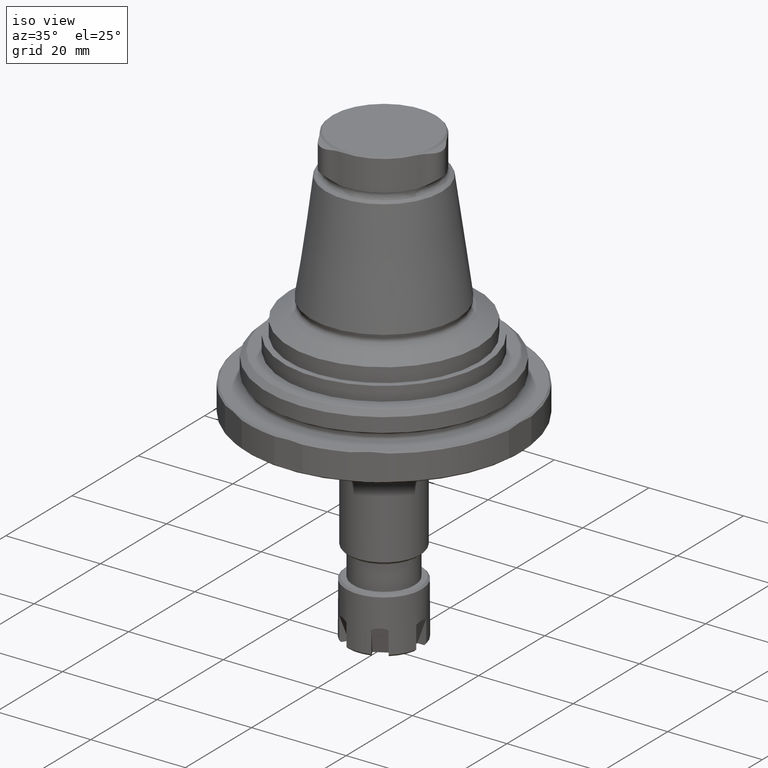
[diagram: clean part render]
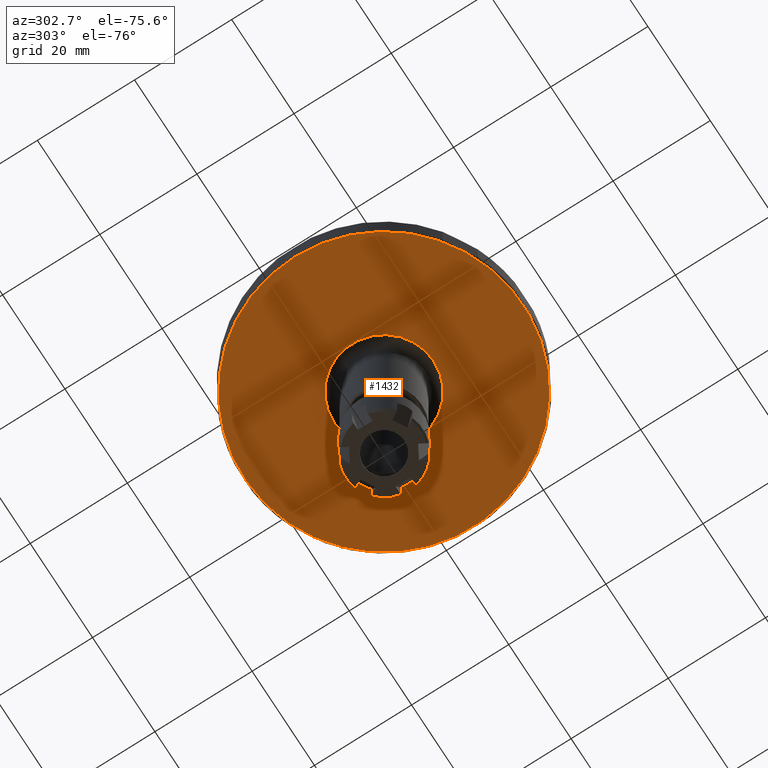
[diagram: tour spotlight — one face highlighted and labeled with its STEP entity id]
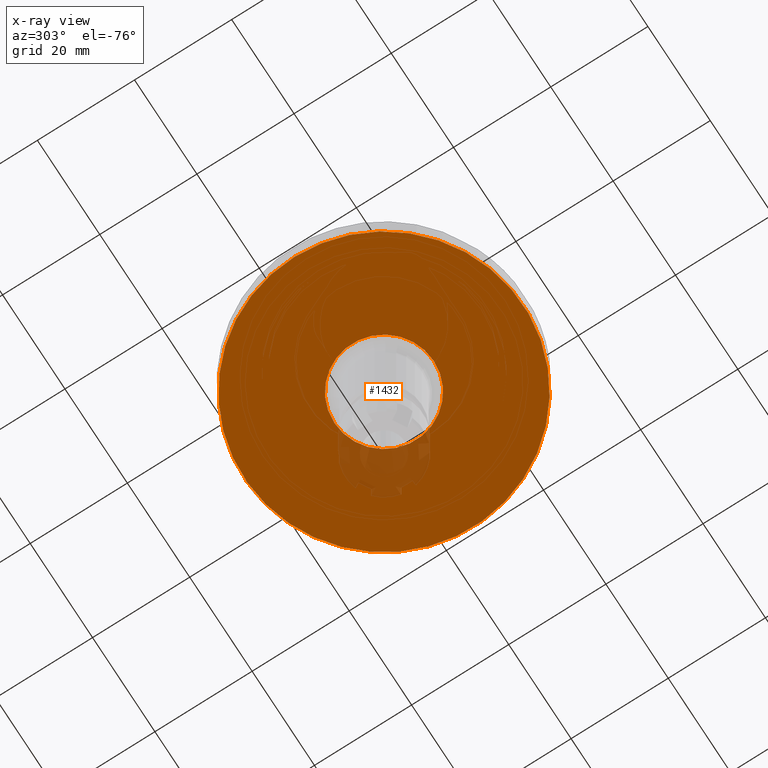
[diagram: x-ray of the same camera — body ghosted, this tour face saturated]
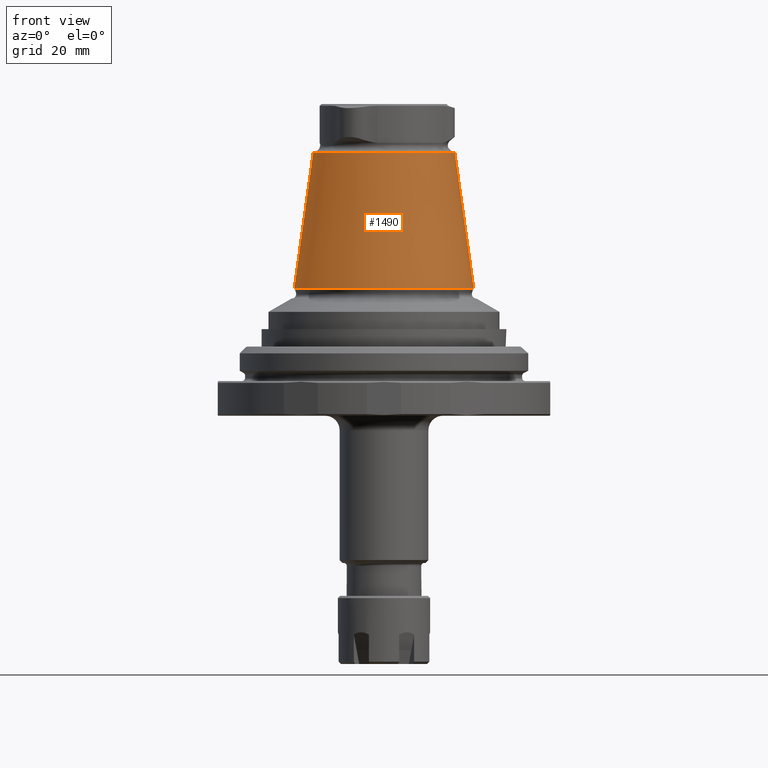
[diagram: tour spotlight — one face highlighted and labeled with its STEP entity id]
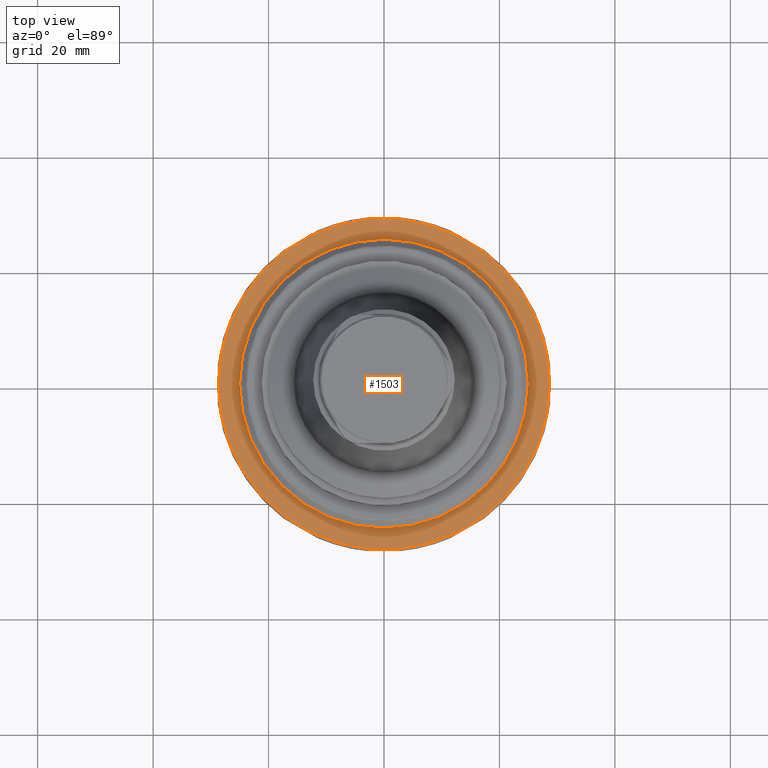
[diagram: tour spotlight — one face highlighted and labeled with its STEP entity id]
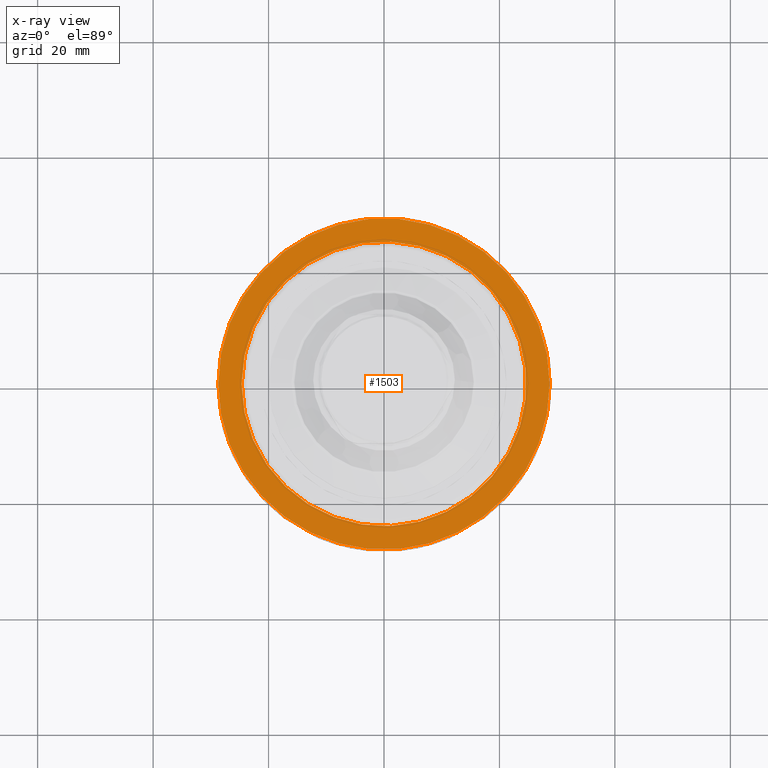
[diagram: x-ray of the same camera — body ghosted, this tour face saturated]
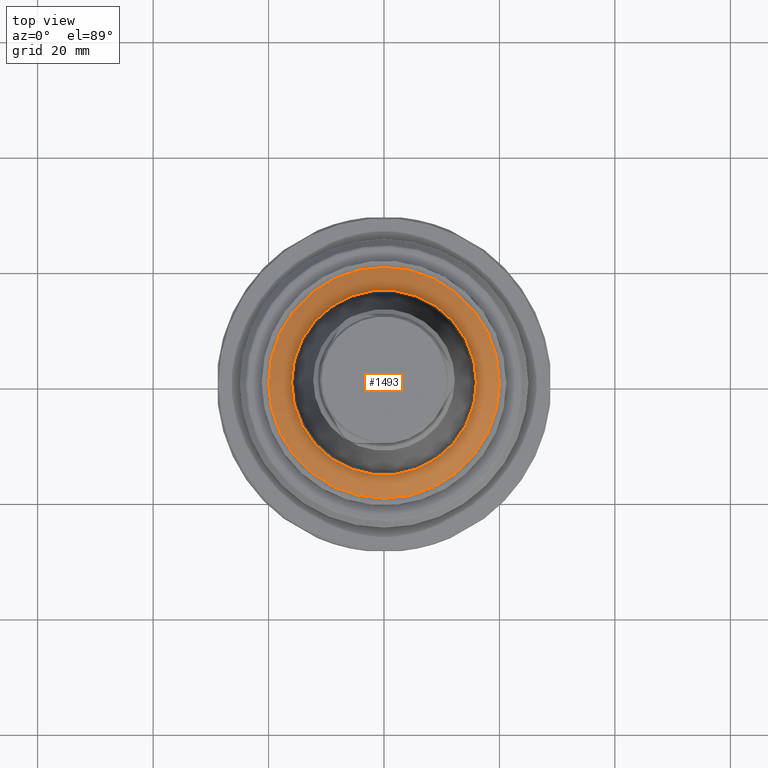
[diagram: tour spotlight — one face highlighted and labeled with its STEP entity id]
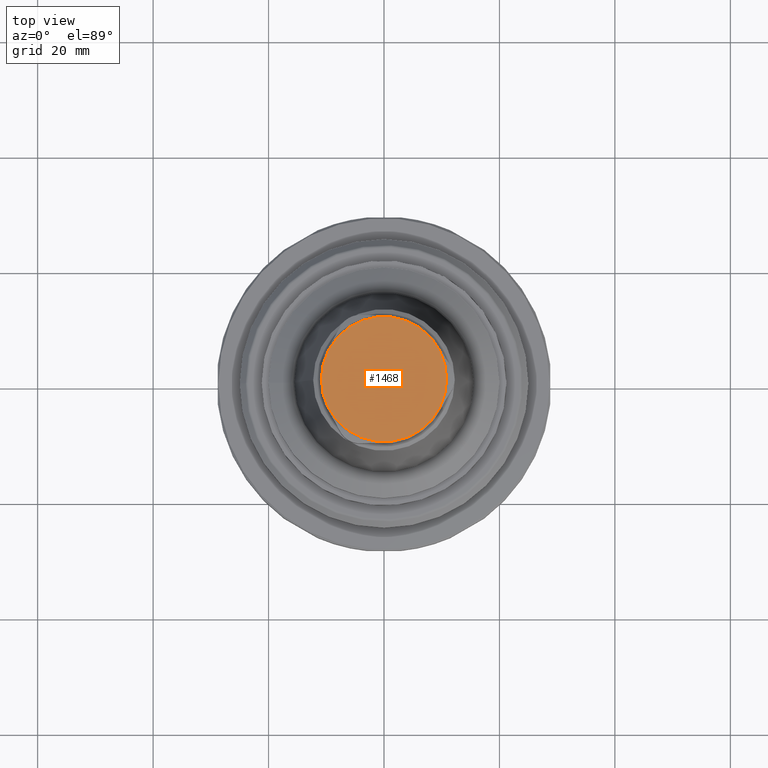
[diagram: tour spotlight — one face highlighted and labeled with its STEP entity id]
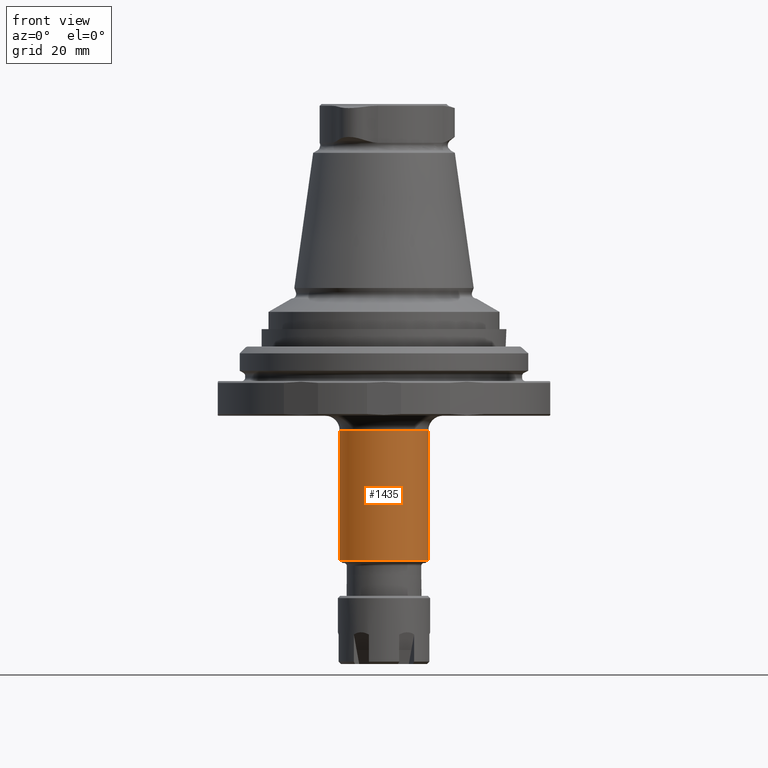
[diagram: tour spotlight — one face highlighted and labeled with its STEP entity id]
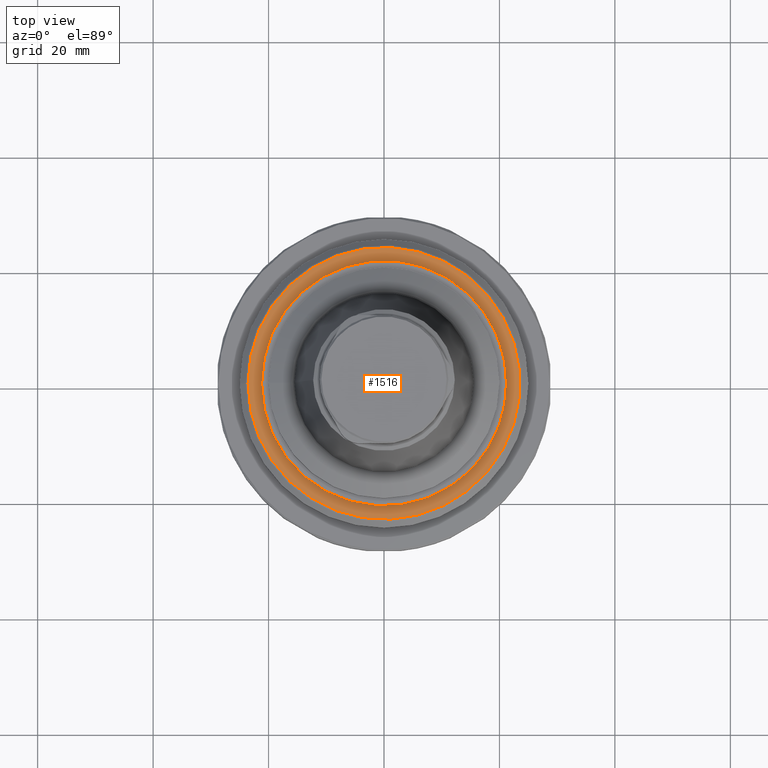
[diagram: tour spotlight — one face highlighted and labeled with its STEP entity id]
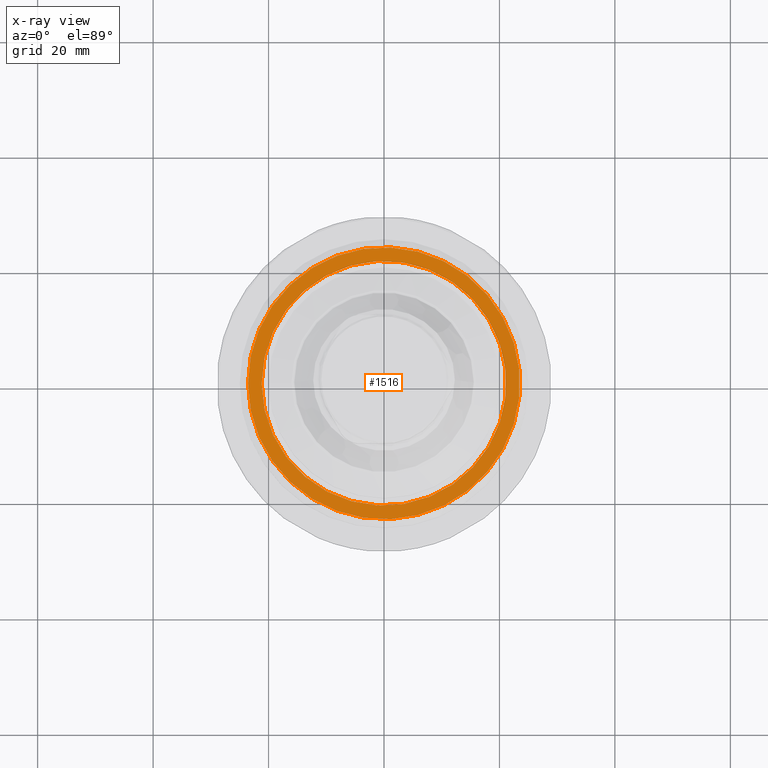
[diagram: x-ray of the same camera — body ghosted, this tour face saturated]
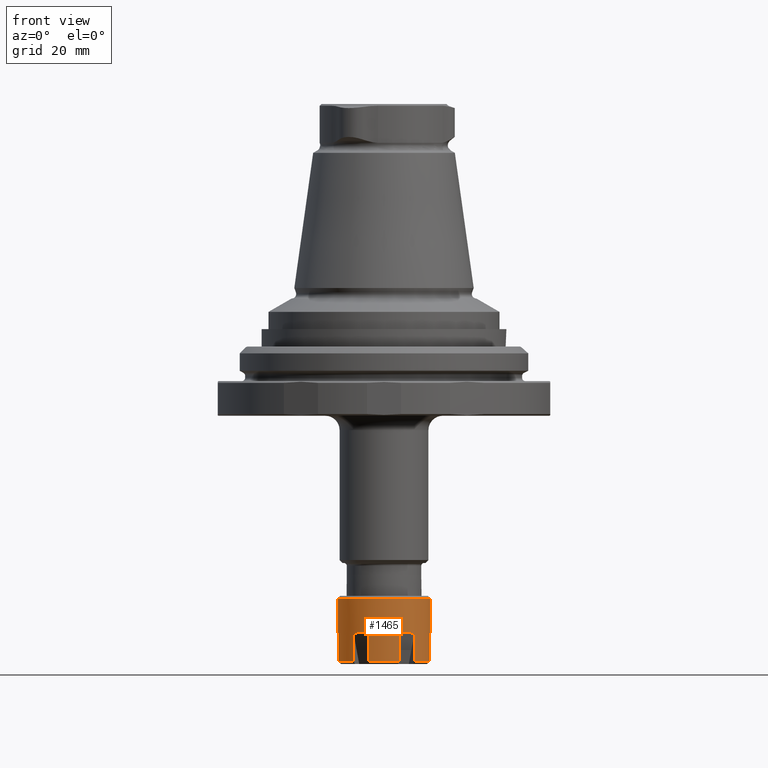
[diagram: tour spotlight — one face highlighted and labeled with its STEP entity id]
A machine part: a face-by-face anatomy tour. The part has 99 B-rep faces; the first image is the clean iso view, then the 8 largest visible faces are spotlighted one at a time (largest first), each with its STEP entity span.

Face 1 — auxiliary view, entity #1432. An x-ray twin of the same camera follows (body ghosted, this face saturated) — the face is partly hidden behind the body. In plain terms, the highlighted planar face has unit normal (0, -0, -1).
Definition (entity closure, byte-faithful):
#281=ORIENTED_EDGE('',*,*,#691,.T.);
#282=ORIENTED_EDGE('',*,*,#692,.T.);
#691=EDGE_CURVE('',#896,#896,#1043,.F.);
#692=EDGE_CURVE('',#897,#897,#1044,.T.);
#896=VERTEX_POINT('',#2165);
#897=VERTEX_POINT('',#2167);
#1043=CIRCLE('',#1545,10.25);
#1044=CIRCLE('',#1546,28.7);
#1120=EDGE_LOOP('',(#281));
#1121=EDGE_LOOP('',(#282));
#1258=FACE_BOUND('',#1120,.T.);
#1259=FACE_BOUND('',#1121,.T.);
#1396=PLANE('',#1544);
#1432=ADVANCED_FACE('',(#1258,#1259),#1396,.T.);
#1544=AXIS2_PLACEMENT_3D('',#2163,#1728,#1729);
#1545=AXIS2_PLACEMENT_3D('',#2164,#1730,#1731);
#1546=AXIS2_PLACEMENT_3D('',#2166,#1732,#1733);
#1728=DIRECTION('',(2.49783760049311E-16,-7.79579225983867E-33,-1.));
#1729=DIRECTION('',(-1.,6.12303176911188E-17,-2.49783760049311E-16));
#1730=DIRECTION('',(1.22464605849178E-16,1.51929083932157E-64,-1.));
#1731=DIRECTION('',(6.16297582203915E-33,1.,7.54746404904039E-49));
#1732=DIRECTION('',(1.22464605849178E-16,1.04225259501902E-17,-1.));
#1733=DIRECTION('',(-1.,-1.84889274661175E-32,-1.22464605849178E-16));
#2163=CARTESIAN_POINT('',(-21.5,1.31645183035906E-15,-7.00000000000001));
#2164=CARTESIAN_POINT('',(5.38954355443911E-16,1.94894806495966E-32,-7.));
#2165=CARTESIAN_POINT('',(5.38954355443911E-16,10.25,-7.));
#2166=CARTESIAN_POINT('',(5.8868771208351E-15,1.56337889252853E-16,-7.00000000000001));
#2167=CARTESIAN_POINT('',(-28.7,1.56337889252853E-16,-7.00000000000001));

Face 2 — front view, entity #1490. In plain terms, the highlighted conical surface has half-angle 7.95 deg.
Definition (entity closure, byte-faithful):
#272=CONICAL_SURFACE('',#1647,15.5400379337869,0.13875367553355);
#548=ORIENTED_EDGE('',*,*,#825,.T.);
#549=ORIENTED_EDGE('',*,*,#826,.F.);
#825=EDGE_CURVE('',#988,#988,#1081,.T.);
#826=EDGE_CURVE('',#989,#989,#1082,.T.);
#988=VERTEX_POINT('',#2562);
#989=VERTEX_POINT('',#2565);
#1081=CIRCLE('',#1646,12.2706905250473);
#1082=CIRCLE('',#1648,15.5400379337869);
#1193=EDGE_LOOP('',(#548));
#1194=EDGE_LOOP('',(#549));
#1331=FACE_BOUND('',#1193,.T.);
#1332=FACE_BOUND('',#1194,.T.);
#1490=ADVANCED_FACE('',(#1331,#1332),#272,.T.);
#1646=AXIS2_PLACEMENT_3D('',#2561,#1986,#1987);
#1647=AXIS2_PLACEMENT_3D('',#2563,#1988,#1989);
#1648=AXIS2_PLACEMENT_3D('',#2564,#1990,#1991);
#1986=DIRECTION('',(2.49783760049311E-16,-7.79579225983867E-33,-1.));
#1987=DIRECTION('',(-1.,6.12303176911188E-17,-2.49783760049311E-16));
#1988=DIRECTION('',(2.49783760049311E-16,-7.79579225983867E-33,-1.));
#1989=DIRECTION('',(-1.,6.12303176911188E-17,-2.49783760049311E-16));
#1990=DIRECTION('',(2.49783760049311E-16,-7.79579225983867E-33,-1.));
#1991=DIRECTION('',(-1.,6.12303176911188E-17,-2.49783760049311E-16));
#2561=CARTESIAN_POINT('',(-3.58073605264896E-15,-6.98118715170611E-32,38.549));
#2562=CARTESIAN_POINT('',(-12.2706905250473,7.51338279138048E-16,38.549));
#2563=CARTESIAN_POINT('',(2.26691015852038E-15,-2.52317872156612E-31,15.1381657247255));
#2564=CARTESIAN_POINT('',(2.26691015852038E-15,-2.52317872156612E-31,15.1381657247255));
#2565=CARTESIAN_POINT('',(-15.5400379337869,9.51521459617812E-16,15.1381657247255));

Face 3 — top view, entity #1503. An x-ray twin of the same camera follows (body ghosted, this face saturated) — the face is partly hidden behind the body. In plain terms, the highlighted planar face has unit normal (0, 0, -1).
Definition (entity closure, byte-faithful):
#612=ORIENTED_EDGE('',*,*,#872,.T.);
#613=ORIENTED_EDGE('',*,*,#852,.F.);
#852=EDGE_CURVE('',#1014,#1014,#1098,.T.);
#872=EDGE_CURVE('',#1029,#1029,#1106,.T.);
#1014=VERTEX_POINT('',#2648);
#1029=VERTEX_POINT('',#2712);
#1098=CIRCLE('',#1672,28.7);
#1106=CIRCLE('',#1685,24.65);
#1215=EDGE_LOOP('',(#612));
#1216=EDGE_LOOP('',(#613));
#1353=FACE_BOUND('',#1215,.T.);
#1354=FACE_BOUND('',#1216,.T.);
#1421=PLANE('',#1684);
#1503=ADVANCED_FACE('',(#1353,#1354),#1421,.F.);
#1672=AXIS2_PLACEMENT_3D('',#2647,#2040,#2041);
#1684=AXIS2_PLACEMENT_3D('',#2710,#2068,#2069);
#1685=AXIS2_PLACEMENT_3D('',#2711,#2070,#2071);
#2040=DIRECTION('',(1.22464605849178E-16,1.04225259501902E-17,-1.));
#2041=DIRECTION('',(-1.,-1.84889274661175E-32,-1.22464605849178E-16));
#2068=DIRECTION('',(1.22464605849178E-16,1.04225259501902E-17,-1.));
#2069=DIRECTION('',(-1.,-1.84889274661175E-32,-1.22464605849178E-16));
#2070=DIRECTION('',(1.22464605849178E-16,1.04225259501902E-17,-1.));
#2071=DIRECTION('',(-1.,-1.84889274661175E-32,-1.22464605849178E-16));
#2647=CARTESIAN_POINT('',(5.15208948574003E-15,9.38027335517118E-17,-1.00000000000001));
#2648=CARTESIAN_POINT('',(-28.7,9.38027335517112E-17,-1.00000000000001));
#2710=CARTESIAN_POINT('',(-24.65,9.38027335517113E-17,-1.00000000000001));
#2711=CARTESIAN_POINT('',(5.15208948574003E-15,9.38027335517118E-17,-1.00000000000001));
#2712=CARTESIAN_POINT('',(-24.65,9.38027335517113E-17,-1.00000000000001));

Face 4 — top view, entity #1493. In plain terms, the highlighted conical surface has half-angle 60 deg.
Definition (entity closure, byte-faithful):
#274=CONICAL_SURFACE('',#1653,20.,1.0471975511966);
#554=ORIENTED_EDGE('',*,*,#828,.T.);
#555=ORIENTED_EDGE('',*,*,#829,.F.);
#828=EDGE_CURVE('',#991,#991,#1084,.T.);
#829=EDGE_CURVE('',#992,#992,#1085,.T.);
#991=VERTEX_POINT('',#2571);
#992=VERTEX_POINT('',#2574);
#1084=CIRCLE('',#1652,16.0162831425916);
#1085=CIRCLE('',#1654,20.);
#1199=EDGE_LOOP('',(#554));
#1200=EDGE_LOOP('',(#555));
#1337=FACE_BOUND('',#1199,.T.);
#1338=FACE_BOUND('',#1200,.T.);
#1493=ADVANCED_FACE('',(#1337,#1338),#274,.T.);
#1652=AXIS2_PLACEMENT_3D('',#2570,#1998,#1999);
#1653=AXIS2_PLACEMENT_3D('',#2572,#2000,#2001);
#1654=AXIS2_PLACEMENT_3D('',#2573,#2002,#2003);
#1998=DIRECTION('',(2.49783760049311E-16,-7.79579225983867E-33,-1.));
#1999=DIRECTION('',(-1.,6.12303176911188E-17,-2.49783760049311E-16));
#2000=DIRECTION('',(2.49783760049311E-16,-7.79579225983867E-33,-1.));
#2001=DIRECTION('',(-1.,6.12303176911188E-17,-2.49783760049311E-16));
#2002=DIRECTION('',(2.49783760049311E-16,-7.79579225983867E-33,-1.));
#2003=DIRECTION('',(-1.,6.12303176911188E-17,-2.49783760049311E-16));
#2570=CARTESIAN_POINT('',(2.7250372886906E-15,-2.66616095286482E-31,13.3040707856479));
#2571=CARTESIAN_POINT('',(-16.0162831425916,9.80682105051795E-16,13.3040707856479));
#2572=CARTESIAN_POINT('',(3.29953993680401E-15,-2.84546417484111E-31,11.0040707856479));
#2573=CARTESIAN_POINT('',(3.29953993680401E-15,-2.84546417484111E-31,11.0040707856479));
#2574=CARTESIAN_POINT('',(-20.,1.22460635382238E-15,11.0040707856479));

Face 5 — top view, entity #1468. In plain terms, the highlighted planar face has unit normal (-0, 0, 1).
Definition (entity closure, byte-faithful):
#447=ORIENTED_EDGE('',*,*,#775,.F.);
#775=EDGE_CURVE('',#956,#956,#1067,.T.);
#956=VERTEX_POINT('',#2381);
#1067=CIRCLE('',#1611,10.85);
#1168=EDGE_LOOP('',(#447));
#1306=FACE_BOUND('',#1168,.T.);
#1418=PLANE('',#1610);
#1468=ADVANCED_FACE('',(#1306),#1418,.T.);
#1610=AXIS2_PLACEMENT_3D('',#2379,#1902,#1903);
#1611=AXIS2_PLACEMENT_3D('',#2380,#1904,#1905);
#1902=DIRECTION('',(-2.49783760049311E-16,7.79579225983867E-33,1.));
#1903=DIRECTION('',(1.,-6.12303176911188E-17,2.49783760049311E-16));
#1904=DIRECTION('',(2.49783760049311E-16,-7.79579225983867E-33,-1.));
#1905=DIRECTION('',(-1.,6.12303176911188E-17,-2.49783760049311E-16));
#2379=CARTESIAN_POINT('',(-10.85,6.6434894694864E-16,47.));
#2380=CARTESIAN_POINT('',(-5.69165860882569E-15,-3.92963112916449E-33,47.));
#2381=CARTESIAN_POINT('',(-10.85,6.6434894694864E-16,47.));

Face 6 — front view, entity #1435. In plain terms, the highlighted cylindrical surface (bore or boss wall) has radius 7.75 mm, axis along (0, 0, -1).
Definition (entity closure, byte-faithful):
#225=CYLINDRICAL_SURFACE('',#1552,7.75);
#287=ORIENTED_EDGE('',*,*,#695,.T.);
#288=ORIENTED_EDGE('',*,*,#696,.T.);
#695=EDGE_CURVE('',#900,#900,#1047,.F.);
#696=EDGE_CURVE('',#901,#901,#1048,.T.);
#900=VERTEX_POINT('',#2175);
#901=VERTEX_POINT('',#2178);
#1047=CIRCLE('',#1551,7.75);
#1048=CIRCLE('',#1553,7.75);
#1126=EDGE_LOOP('',(#287));
#1127=EDGE_LOOP('',(#288));
#1264=FACE_BOUND('',#1126,.T.);
#1265=FACE_BOUND('',#1127,.T.);
#1435=ADVANCED_FACE('',(#1264,#1265),#225,.T.);
#1551=AXIS2_PLACEMENT_3D('',#2174,#1742,#1743);
#1552=AXIS2_PLACEMENT_3D('',#2176,#1744,#1745);
#1553=AXIS2_PLACEMENT_3D('',#2177,#1746,#1747);
#1742=DIRECTION('',(1.22464605849178E-16,1.51929083932157E-64,-1.));
#1743=DIRECTION('',(6.16297582203915E-33,1.,7.54746404904039E-49));
#1744=DIRECTION('',(1.22464605849178E-16,1.51929083932157E-64,-1.));
#1745=DIRECTION('',(6.16297582203915E-33,1.,7.54746404904039E-49));
#1746=DIRECTION('',(1.22464605849178E-16,1.51929083932157E-64,-1.));
#1747=DIRECTION('',(6.16297582203915E-33,1.,7.54746404904039E-49));
#2174=CARTESIAN_POINT('',(3.91886738717369E-15,6.68549816374926E-63,-32.));
#2175=CARTESIAN_POINT('',(3.91886738717369E-15,7.75,-32.));
#2176=CARTESIAN_POINT('',(5.87780255360068E-15,9.11574503592941E-63,-47.9959292143521));
#2177=CARTESIAN_POINT('',(1.16341375556719E-15,3.26709377527574E-63,-9.5));
#2178=CARTESIAN_POINT('',(1.16341375556719E-15,7.75,-9.5));

Face 7 — top view, entity #1516. An x-ray twin of the same camera follows (body ghosted, this face saturated) — the face is partly hidden behind the body. In plain terms, the highlighted planar face has unit normal (0, 0, -1).
Definition (entity closure, byte-faithful):
#662=ORIENTED_EDGE('',*,*,#832,.F.);
#663=ORIENTED_EDGE('',*,*,#883,.F.);
#832=EDGE_CURVE('',#995,#995,#1088,.T.);
#883=EDGE_CURVE('',#1030,#1030,#1107,.T.);
#995=VERTEX_POINT('',#2583);
#1030=VERTEX_POINT('',#2737);
#1088=CIRCLE('',#1660,21.2);
#1107=CIRCLE('',#1699,23.5524710292422);
#1229=EDGE_LOOP('',(#662));
#1230=EDGE_LOOP('',(#663));
#1367=FACE_BOUND('',#1229,.T.);
#1368=FACE_BOUND('',#1230,.T.);
#1429=PLANE('',#1698);
#1516=ADVANCED_FACE('',(#1367,#1368),#1429,.F.);
#1660=AXIS2_PLACEMENT_3D('',#2582,#2014,#2015);
#1698=AXIS2_PLACEMENT_3D('',#2735,#2106,#2107);
#1699=AXIS2_PLACEMENT_3D('',#2736,#2108,#2109);
#2014=DIRECTION('',(-1.06830816923893E-16,-6.38359491786664E-17,1.));
#2015=DIRECTION('',(-1.,6.12303176911188E-17,-1.0683081361517E-16));
#2106=DIRECTION('',(1.22464605849178E-16,1.04225259501902E-17,-1.));
#2107=DIRECTION('',(-1.,-1.84889274661175E-32,-1.22464605849178E-16));
#2108=DIRECTION('',(1.22464605849178E-16,1.04225259501902E-17,-1.));
#2109=DIRECTION('',(-1.,-1.84889274661175E-32,-1.22464605849178E-16));
#2582=CARTESIAN_POINT('',(4.87073578480807E-15,-1.30281574377412E-18,4.99999999999999));
#2583=CARTESIAN_POINT('',(-21.2,1.29677991930795E-15,4.99999999999999));
#2735=CARTESIAN_POINT('',(4.41730185064496E-15,3.12675778505702E-17,5.));
#2736=CARTESIAN_POINT('',(4.41730185064496E-15,3.12675778505702E-17,4.99999999999999));
#2737=CARTESIAN_POINT('',(-23.5524710292422,3.12675778505698E-17,4.99999999999999));

Face 8 — front view, entity #1465. In plain terms, the highlighted cylindrical surface (bore or boss wall) has radius 8 mm, axis along (0, 0, -1).
Definition (entity closure, byte-faithful):
#20=ELLIPSE('',#1571,23.3904352013047,8.);
#21=ELLIPSE('',#1577,23.3904352013047,8.);
#22=ELLIPSE('',#1583,23.3904352013047,8.);
#23=ELLIPSE('',#1589,23.3904352013047,8.);
#24=ELLIPSE('',#1595,23.3904352013047,8.);
#25=ELLIPSE('',#1601,23.3904352013047,8.);
#96=LINE('',#2241,#166);
#99=LINE('',#2259,#169);
#100=LINE('',#2268,#170);
#103=LINE('',#2281,#173);
#104=LINE('',#2290,#174);
#107=LINE('',#2303,#177);
#108=LINE('',#2312,#178);
#111=LINE('',#2325,#181);
#112=LINE('',#2334,#182);
#115=LINE('',#2347,#185);
#116=LINE('',#2356,#186);
#119=LINE('',#2369,#189);
#166=VECTOR('',#1798,1000.);
#169=VECTOR('',#1807,1000.);
#170=VECTOR('',#1814,1000.);
#173=VECTOR('',#1823,1000.);
#174=VECTOR('',#1830,1000.);
#177=VECTOR('',#1839,1000.);
#178=VECTOR('',#1846,1000.);
#181=VECTOR('',#1855,1000.);
#182=VECTOR('',#1862,1000.);
#185=VECTOR('',#1871,1000.);
#186=VECTOR('',#1878,1000.);
#189=VECTOR('',#1887,1000.);
#228=CYLINDRICAL_SURFACE('',#1605,8.);
#418=ORIENTED_EDGE('',*,*,#773,.T.);
#419=ORIENTED_EDGE('',*,*,#772,.F.);
#420=ORIENTED_EDGE('',*,*,#771,.F.);
#421=ORIENTED_EDGE('',*,*,#768,.F.);
#422=ORIENTED_EDGE('',*,*,#766,.T.);
#423=ORIENTED_EDGE('',*,*,#764,.F.);
#424=ORIENTED_EDGE('',*,*,#763,.F.);
#425=ORIENTED_EDGE('',*,*,#760,.F.);
#426=ORIENTED_EDGE('',*,*,#758,.T.);
#427=ORIENTED_EDGE('',*,*,#756,.F.);
#428=ORIENTED_EDGE('',*,*,#755,.F.);
#429=ORIENTED_EDGE('',*,*,#752,.F.);
#430=ORIENTED_EDGE('',*,*,#750,.T.);
#431=ORIENTED_EDGE('',*,*,#748,.F.);
#432=ORIENTED_EDGE('',*,*,#747,.F.);
#433=ORIENTED_EDGE('',*,*,#744,.F.);
#434=ORIENTED_EDGE('',*,*,#742,.T.);
#435=ORIENTED_EDGE('',*,*,#740,.F.);
#436=ORIENTED_EDGE('',*,*,#739,.F.);
#437=ORIENTED_EDGE('',*,*,#736,.F.);
#438=ORIENTED_EDGE('',*,*,#734,.T.);
#439=ORIENTED_EDGE('',*,*,#732,.F.);
#440=ORIENTED_EDGE('',*,*,#731,.F.);
#441=ORIENTED_EDGE('',*,*,#728,.F.);
#442=ORIENTED_EDGE('',*,*,#725,.T.);
#725=EDGE_CURVE('',#930,#931,#96,.T.);
#728=EDGE_CURVE('',#930,#932,#20,.F.);
#731=EDGE_CURVE('',#932,#933,#99,.T.);
#732=EDGE_CURVE('',#933,#934,#1059,.T.);
#734=EDGE_CURVE('',#935,#934,#100,.T.);
#736=EDGE_CURVE('',#935,#936,#21,.F.);
#739=EDGE_CURVE('',#936,#937,#103,.T.);
#740=EDGE_CURVE('',#937,#938,#1060,.T.);
#742=EDGE_CURVE('',#939,#938,#104,.T.);
#744=EDGE_CURVE('',#939,#940,#22,.F.);
#747=EDGE_CURVE('',#940,#941,#107,.T.);
#748=EDGE_CURVE('',#941,#942,#1061,.T.);
#750=EDGE_CURVE('',#943,#942,#108,.T.);
#752=EDGE_CURVE('',#943,#944,#23,.F.);
#755=EDGE_CURVE('',#944,#945,#111,.T.);
#756=EDGE_CURVE('',#945,#946,#1062,.T.);
#758=EDGE_CURVE('',#947,#946,#112,.T.);
#760=EDGE_CURVE('',#947,#948,#24,.F.);
#763=EDGE_CURVE('',#948,#949,#115,.T.);
#764=EDGE_CURVE('',#949,#950,#1063,.T.);
#766=EDGE_CURVE('',#951,#950,#116,.T.);
#768=EDGE_CURVE('',#951,#952,#25,.F.);
#771=EDGE_CURVE('',#952,#953,#119,.T.);
#772=EDGE_CURVE('',#953,#931,#1064,.T.);
#773=EDGE_CURVE('',#954,#954,#1065,.T.);
#930=VERTEX_POINT('',#2242);
#931=VERTEX_POINT('',#2243);
#932=VERTEX_POINT('',#2251);
#933=VERTEX_POINT('',#2258);
#934=VERTEX_POINT('',#2262);
#935=VERTEX_POINT('',#2269);
#936=VERTEX_POINT('',#2273);
#937=VERTEX_POINT('',#2280);
#938=VERTEX_POINT('',#2284);
#939=VERTEX_POINT('',#2291);
#940=VERTEX_POINT('',#2295);
#941=VERTEX_POINT('',#2302);
#942=VERTEX_POINT('',#2306);
#943=VERTEX_POINT('',#2313);
#944=VERTEX_POINT('',#2317);
#945=VERTEX_POINT('',#2324);
#946=VERTEX_POINT('',#2328);
#947=VERTEX_POINT('',#2335);
#948=VERTEX_POINT('',#2339);
#949=VERTEX_POINT('',#2346);
#950=VERTEX_POINT('',#2350);
#951=VERTEX_POINT('',#2357);
#952=VERTEX_POINT('',#2361);
#953=VERTEX_POINT('',#2368);
#954=VERTEX_POINT('',#2374);
#1059=CIRCLE('',#1574,8.);
#1060=CIRCLE('',#1580,8.);
#1061=CIRCLE('',#1586,8.);
#1062=CIRCLE('',#1592,8.);
#1063=CIRCLE('',#1598,8.);
#1064=CIRCLE('',#1604,8.);
#1065=CIRCLE('',#1606,8.);
#1162=EDGE_LOOP('',(#418));
#1163=EDGE_LOOP('',(#419,#420,#421,#422,#423,#424,#425,#426,#427,#428,#429,
#430,#431,#432,#433,#434,#435,#436,#437,#438,#439,#440,#441,#442));
#1300=FACE_BOUND('',#1162,.T.);
#1301=FACE_BOUND('',#1163,.T.);
#1465=ADVANCED_FACE('',(#1300,#1301),#228,.T.);
#1571=AXIS2_PLACEMENT_3D('',#2250,#1802,#1803);
#1574=AXIS2_PLACEMENT_3D('',#2261,#1810,#1811);
#1577=AXIS2_PLACEMENT_3D('',#2272,#1818,#1819);
#1580=AXIS2_PLACEMENT_3D('',#2283,#1826,#1827);
#1583=AXIS2_PLACEMENT_3D('',#2294,#1834,#1835);
#1586=AXIS2_PLACEMENT_3D('',#2305,#1842,#1843);
#1589=AXIS2_PLACEMENT_3D('',#2316,#1850,#1851);
#1592=AXIS2_PLACEMENT_3D('',#2327,#1858,#1859);
#1595=AXIS2_PLACEMENT_3D('',#2338,#1866,#1867);
#1598=AXIS2_PLACEMENT_3D('',#2349,#1874,#1875);
#1601=AXIS2_PLACEMENT_3D('',#2360,#1882,#1883);
#1604=AXIS2_PLACEMENT_3D('',#2371,#1890,#1891);
#1605=AXIS2_PLACEMENT_3D('',#2372,#1892,#1893);
#1606=AXIS2_PLACEMENT_3D('',#2373,#1894,#1895);
#1798=DIRECTION('',(1.08432801113644E-16,7.61584351035E-18,-1.));
#1802=DIRECTION('',(0.469846310392953,0.813797681349374,0.342020143325669));
#1803=DIRECTION('',(0.171010071662834,0.296198132726024,-0.939692620785908));
#1807=DIRECTION('',(1.08432801113644E-16,7.61584351035E-18,-1.));
#1810=DIRECTION('',(1.08432801113644E-16,7.61584351035E-18,-1.));
#1811=DIRECTION('',(-1.,6.12303176911188E-17,-1.08432801113644E-16));
#1814=DIRECTION('',(1.08432801113644E-16,7.61584351035E-18,-1.));
#1818=DIRECTION('',(0.939692620785908,-6.0142449591677E-17,0.342020143325669));
#1819=DIRECTION('',(0.342020143325669,-1.37854500848566E-17,-0.939692620785908));
#1823=DIRECTION('',(1.08432801113644E-16,7.61584351035E-18,-1.));
#1826=DIRECTION('',(1.08432801113644E-16,7.61584351035E-18,-1.));
#1827=DIRECTION('',(-1.,6.12303176911188E-17,-1.08432801113644E-16));
#1830=DIRECTION('',(1.08432801113644E-16,7.61584351035E-18,-1.));
#1834=DIRECTION('',(0.469846310392954,-0.813797681349373,0.342020143325669));
#1835=DIRECTION('',(0.171010071662835,-0.296198132726024,-0.939692620785908));
#1839=DIRECTION('',(1.08432801113644E-16,7.61584351035E-18,-1.));
#1842=DIRECTION('',(1.08432801113644E-16,7.61584351035E-18,-1.));
#1843=DIRECTION('',(-1.,6.12303176911188E-17,-1.08432801113644E-16));
#1846=DIRECTION('',(1.08432801113644E-16,7.61584351035E-18,-1.));
#1850=DIRECTION('',(-0.469846310392954,-0.813797681349373,0.342020143325669));
#1851=DIRECTION('',(-0.171010071662834,-0.296198132726024,-0.939692620785908));
#1855=DIRECTION('',(1.08432801113644E-16,7.61584351035E-18,-1.));
#1858=DIRECTION('',(1.08432801113644E-16,7.61584351035E-18,-1.));
#1859=DIRECTION('',(-1.,6.12303176911188E-17,-1.08432801113644E-16));
#1862=DIRECTION('',(1.08432801113644E-16,7.61584351035E-18,-1.));
#1866=DIRECTION('',(-0.939692620785908,-6.01462502090196E-17,0.342020143325669));
#1867=DIRECTION('',(-0.342020143325669,-1.37868333964411E-17,-0.939692620785908));
#1871=DIRECTION('',(1.08432801113644E-16,7.61584351035E-18,-1.));
#1874=DIRECTION('',(1.08432801113644E-16,7.61584351035E-18,-1.));
#1875=DIRECTION('',(-1.,6.12303176911188E-17,-1.08432801113644E-16));
#1878=DIRECTION('',(1.08432801113644E-16,7.61584351035E-18,-1.));
#1882=DIRECTION('',(-0.469846310392955,0.813797681349373,0.342020143325669));
#1883=DIRECTION('',(-0.171010071662835,0.296198132726024,-0.939692620785908));
#1887=DIRECTION('',(1.08432801113644E-16,7.61584351035E-18,-1.));
#1890=DIRECTION('',(1.08432801113644E-16,7.61584351035E-18,-1.));
#1891=DIRECTION('',(-1.,6.12303176911188E-17,-1.08432801113644E-16));
#1892=DIRECTION('',(1.08432801113644E-16,7.61584351035E-18,-1.));
#1893=DIRECTION('',(-1.,6.12303176911188E-17,-1.08432801113644E-16));
#1894=DIRECTION('',(1.08432801113644E-16,7.61584351035E-18,-1.));
#1895=DIRECTION('',(-1.,6.12303176911188E-17,-1.08432801113644E-16));
#2241=CARTESIAN_POINT('',(-2.63002030569874,-7.5553287944081,-110.));
#2242=CARTESIAN_POINT('',(-2.63002030569874,-7.5553287944081,-44.8948659867833));
#2243=CARTESIAN_POINT('',(-2.63002030569875,-7.5553287944081,-49.6));
#2250=CARTESIAN_POINT('',(1.94815743939648E-14,1.82664974776344E-16,-66.4848645167277));
#2251=CARTESIAN_POINT('',(-5.22809651705206,-6.0553287944081,-44.8948659867833));
#2258=CARTESIAN_POINT('',(-5.22809651705206,-6.0553287944081,-49.6));
#2259=CARTESIAN_POINT('',(-5.22809651705206,-6.0553287944081,-110.));
#2261=CARTESIAN_POINT('',(1.76507012379916E-14,5.40724889234844E-17,-49.6));
#2262=CARTESIAN_POINT('',(-7.85811682275084,-1.5,-49.6));
#2268=CARTESIAN_POINT('',(-7.85811682275083,-1.5,-110.));
#2269=CARTESIAN_POINT('',(-7.85811682275083,-1.5,-44.8948659867833));
#2272=CARTESIAN_POINT('',(1.94815743939648E-14,1.82664974776344E-16,-66.4848645167277));
#2273=CARTESIAN_POINT('',(-7.85811682275083,1.5,-44.8948659867833));
#2280=CARTESIAN_POINT('',(-7.85811682275084,1.5,-49.6));
#2281=CARTESIAN_POINT('',(-7.85811682275083,1.5,-110.));
#2283=CARTESIAN_POINT('',(1.76507012379916E-14,5.40724889234844E-17,-49.6));
#2284=CARTESIAN_POINT('',(-5.22809651705207,6.0553287944081,-49.6));
#2290=CARTESIAN_POINT('',(-5.22809651705206,6.0553287944081,-110.));
#2291=CARTESIAN_POINT('',(-5.22809651705207,6.0553287944081,-44.8948659867833));
#2294=CARTESIAN_POINT('',(1.94815743939648E-14,1.82664974776344E-16,-66.4848645167277));
#2295=CARTESIAN_POINT('',(-2.63002030569875,7.5553287944081,-44.8948659867833));
#2302=CARTESIAN_POINT('',(-2.63002030569875,7.5553287944081,-49.6));
#2303=CARTESIAN_POINT('',(-2.63002030569875,7.5553287944081,-110.));
#2305=CARTESIAN_POINT('',(1.76507012379916E-14,5.40724889234844E-17,-49.6));
#2306=CARTESIAN_POINT('',(2.63002030569879,7.5553287944081,-49.6));
#2312=CARTESIAN_POINT('',(2.6300203056988,7.5553287944081,-110.));
#2313=CARTESIAN_POINT('',(2.63002030569879,7.5553287944081,-44.8948659867833));
#2316=CARTESIAN_POINT('',(1.94815743939648E-14,1.82664974776344E-16,-66.4848645167277));
#2317=CARTESIAN_POINT('',(5.2280965170521,6.0553287944081,-44.8948659867833));
#2324=CARTESIAN_POINT('',(5.2280965170521,6.0553287944081,-49.6));
#2325=CARTESIAN_POINT('',(5.22809651705211,6.0553287944081,-110.));
#2327=CARTESIAN_POINT('',(1.76507012379916E-14,5.40724889234844E-17,-49.6));
#2328=CARTESIAN_POINT('',(7.85811682275087,1.5,-49.6));
#2334=CARTESIAN_POINT('',(7.85811682275088,1.5,-110.));
#2335=CARTESIAN_POINT('',(7.85811682275087,1.5,-44.8948659867833));
#2338=CARTESIAN_POINT('',(1.94815743939648E-14,1.82664974776344E-16,-66.4848645167277));
#2339=CARTESIAN_POINT('',(7.85811682275087,-1.5,-44.8948659867833));
#2346=CARTESIAN_POINT('',(7.85811682275087,-1.5,-49.6));
#2347=CARTESIAN_POINT('',(7.85811682275088,-1.5,-110.));
#2349=CARTESIAN_POINT('',(1.76507012379916E-14,5.40724889234844E-17,-49.6));
#2350=CARTESIAN_POINT('',(5.22809651705211,-6.05532879440809,-49.6));
#2356=CARTESIAN_POINT('',(5.22809651705212,-6.05532879440809,-110.));
#2357=CARTESIAN_POINT('',(5.22809651705211,-6.05532879440809,-44.8948659867833));
#2360=CARTESIAN_POINT('',(1.94815743939648E-14,1.82664974776344E-16,-66.4848645167277));
#2361=CARTESIAN_POINT('',(2.63002030569879,-7.55532879440809,-44.8948659867833));
#2368=CARTESIAN_POINT('',(2.6300203056988,-7.5553287944081,-49.6));
#2369=CARTESIAN_POINT('',(2.6300203056988,-7.5553287944081,-110.));
#2371=CARTESIAN_POINT('',(1.76507012379916E-14,5.40724889234844E-17,-49.6));
#2372=CARTESIAN_POINT('',(2.42000424252557E-14,5.14069436948625E-16,-110.));
#2373=CARTESIAN_POINT('',(1.64579404257415E-14,-2.97017896903657E-17,-38.6));
#2374=CARTESIAN_POINT('',(-7.99999999999998,4.60140751838585E-16,-38.6));